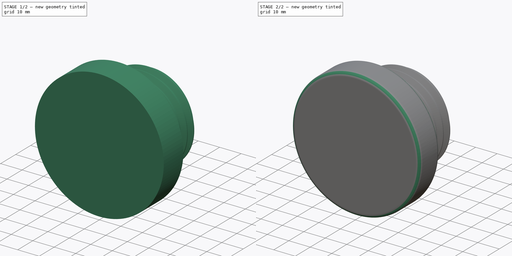
[diagram: build sequence overview — one tinted view per stage of 2, left to right]
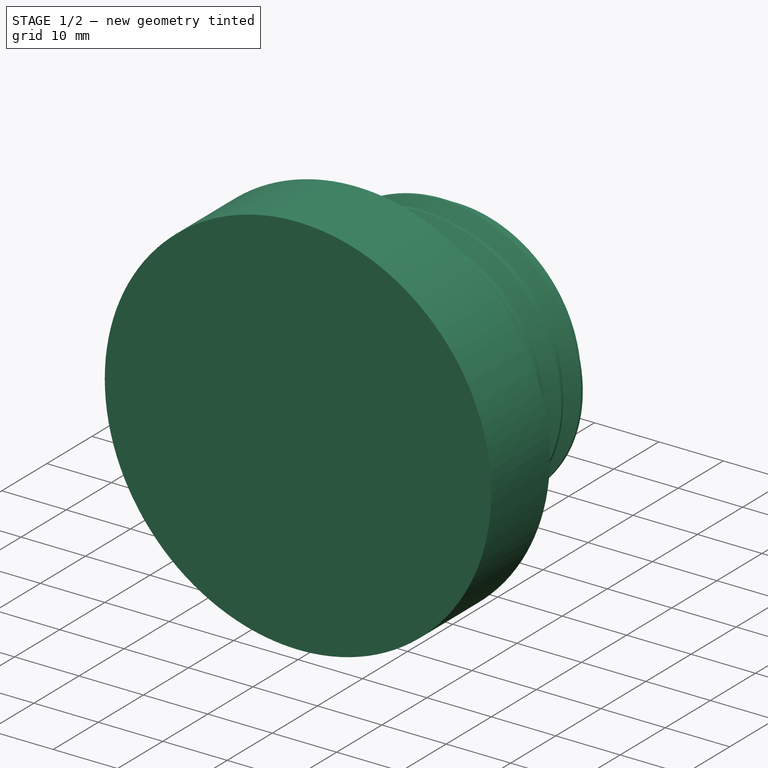
[diagram: stage 1 of 2 — iso view after this stage's code; geometry added in this stage tinted green]
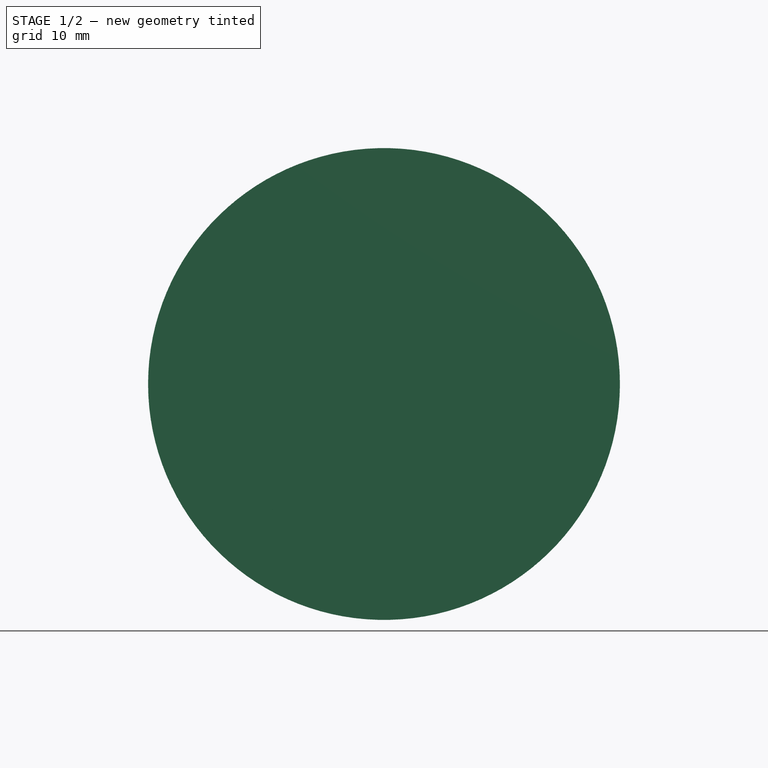
[diagram: stage 1 of 2 — front view after this stage's code; geometry added in this stage tinted green]
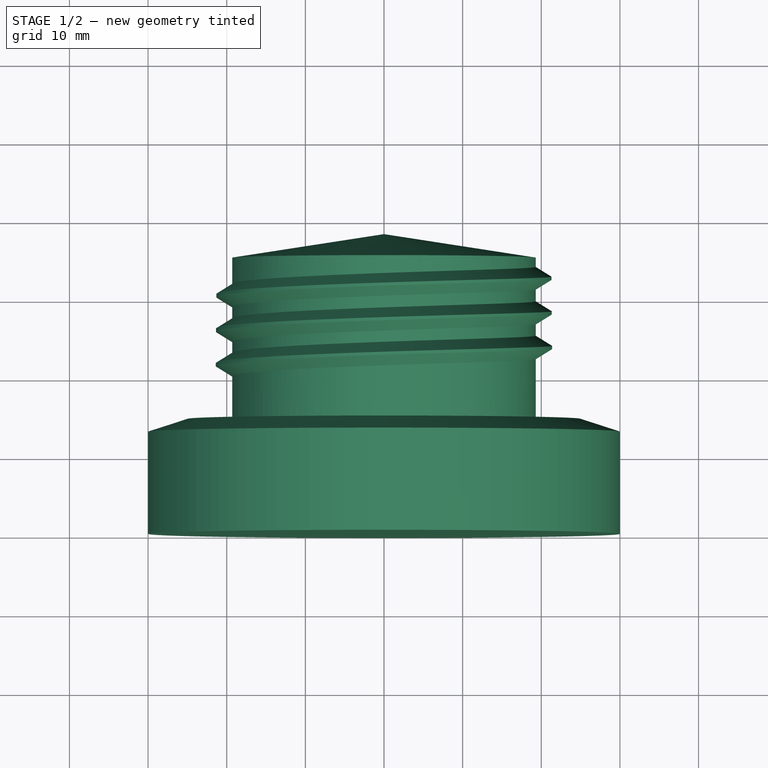
[diagram: stage 1 of 2 — top view after this stage's code; geometry added in this stage tinted green]
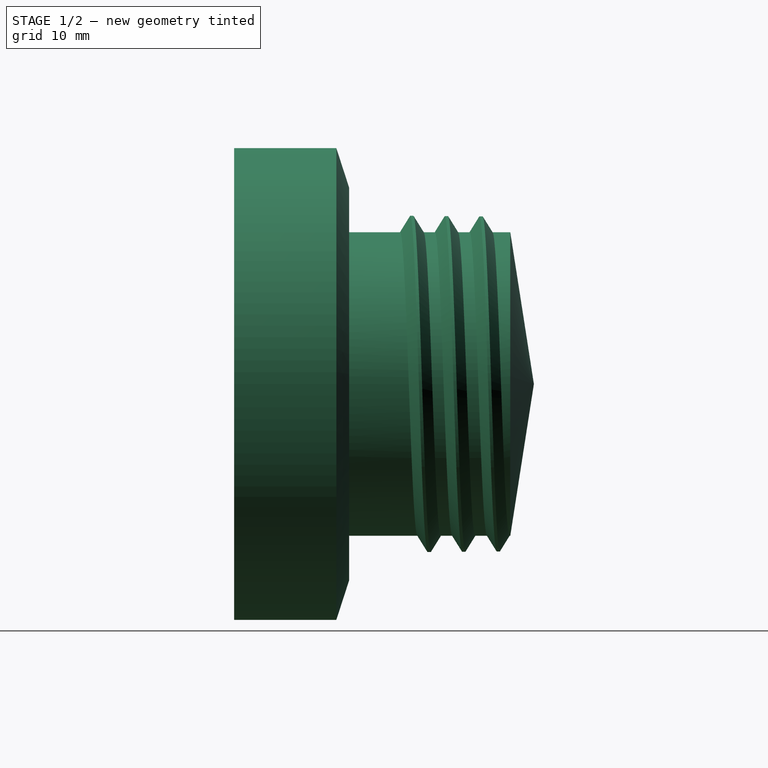
[diagram: stage 1 of 2 — right view after this stage's code; geometry added in this stage tinted green]
FCSTD DOCUMENT  (FreeCAD 0.19R)
Label: zatka_1
License: All rights reserved
LicenseURL: http://en.wikipedia.org/wiki/All_rights_reserved
objects: Sketcher::SketchObject×2, PartDesign::Revolution×1, PartDesign::AdditiveHelix×1, PartDesign::Fillet×1, PartDesign::Body×1
note: 9 computed .brp shape members not serialized (recipe doc carries the construction recipe); baked Part::Feature solids carry a one-line shape summary decoded from their .brp

FEATURE [Sketcher::SketchObject] Sketch
  FullyConstrained = false
  MapMode = 5
  Support = -> [XY_Plane]
  sketch-geometry (7):
    g0: LineSegment StartX=0 StartY=38.1206 StartZ=0 EndX=-19.3 EndY=35.1206 EndZ=0
    g1: LineSegment StartX=-19.3 StartY=35.1206 StartZ=0 EndX=-19.3 EndY=14.6206 EndZ=0
    g2: LineSegment StartX=-30 StartY=13 StartZ=0 EndX=-30 EndY=0 EndZ=0
    g3: LineSegment StartX=-30 StartY=0 StartZ=0 EndX=0 EndY=0 EndZ=0
    g4: LineSegment StartX=0 StartY=0 StartZ=0 EndX=0 EndY=38.1206 EndZ=0
    g5: LineSegment StartX=-19.3 StartY=14.6206 StartZ=0 EndX=-25 EndY=14.6206 EndZ=0
    g6: LineSegment StartX=-25 StartY=14.6206 StartZ=0 EndX=-30 EndY=13 EndZ=0
  constraints (19):
    c: PointOnObject(g0,g-2)
    c: Coincident(g1,g0)
    c: Vertical(g1)
    c: PointOnObject(g2,g-1)
    c: Vertical(g2)
    c: Coincident(g3,g2)
    c: Coincident(g3,g-1)
    c: Coincident(g4,g3)
    c: Coincident(g4,g0)
    c: DistanceX(g1,g3) = 19.3
    c: DistanceY(g1,g0) = 20.5
    c: DistanceY(g2,g2) = 13
    c: DistanceY(g0,g0) = -3
    c: DistanceX(g2,g3) = 30
    c: Coincident(g5,g1)
    c: Coincident(g6,g5)
    c: Coincident(g6,g2)
    c: Parallel(g5,g3)
    c: DistanceX(g5,g3) = 25
FEATURE [PartDesign::Revolution] Revolution
  Angle = 360
  Axis = (0,1,0)
  Base = (0,0,0)
  Profile = -> Sketch
  ReferenceAxis = -> Sketch [V_Axis]
FEATURE [Sketcher::SketchObject] Sketch001
  FullyConstrained = false
  MapMode = 5
  Support = -> [XY_Plane]
  sketch-geometry (4):
    g0: LineSegment StartX=-19.3 StartY=23 StartZ=0 EndX=-21.4 EndY=21.7 EndZ=0
    g1: LineSegment StartX=-19.3 StartY=20 StartZ=0 EndX=-19.3 EndY=23 EndZ=0
    g2: LineSegment StartX=-21.4 StartY=21.7 StartZ=0 EndX=-21.4 EndY=21.3 EndZ=0
    g3: LineSegment StartX=-21.4 StartY=21.3 StartZ=0 EndX=-19.3 EndY=20 EndZ=0
  constraints (11):
    c: Coincident(g1,g0)
    c: DistanceX(g1,g-1) = 19.3
    c: DistanceX(g0,g1) = 0
    c: DistanceY(g-1,g1) = 20
    c: DistanceX(g0,g0) = 2.1
    c: DistanceY(g1,g0) = 3
    c: DistanceY(g0,g0) = 1.3
    c: Coincident(g2,g0)
    c: Vertical(g2)
    c: Coincident(g3,g2)
    c: DistanceY(g2,g0) = 0.4
FEATURE [PartDesign::AdditiveHelix] AdditiveHelix
  Angle = -0.5
  Axis = (1e-16,1,-1e-16)
  Base = (0,0,0)
  BaseFeature = -> Revolution
  HasBeenEdited = true
  Height = 12.1
  LeftHanded = false
  Mode = 1
  Outside = false
  Pitch = 4.4
  Profile = -> Sketch001
  ReferenceAxis = -> Y_Axis
  Turns = 2.75
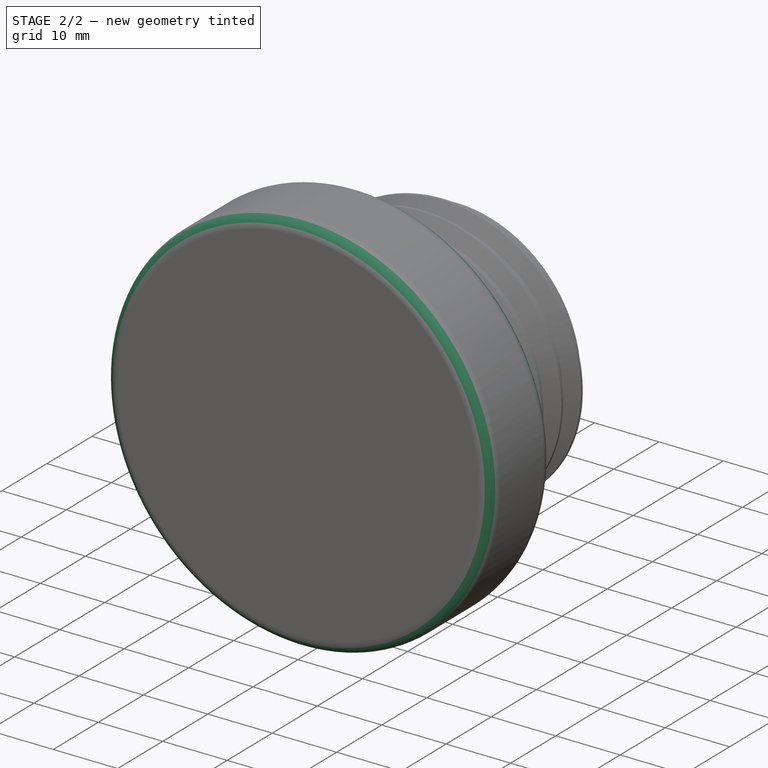
[diagram: stage 2 of 2 — iso view after this stage's code; geometry added in this stage tinted green]
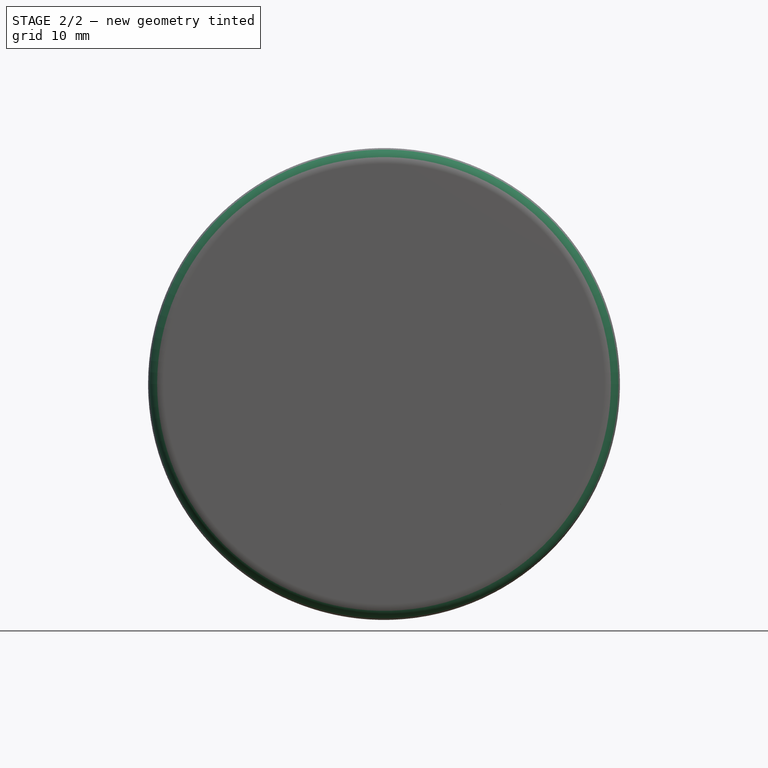
[diagram: stage 2 of 2 — front view after this stage's code; geometry added in this stage tinted green]
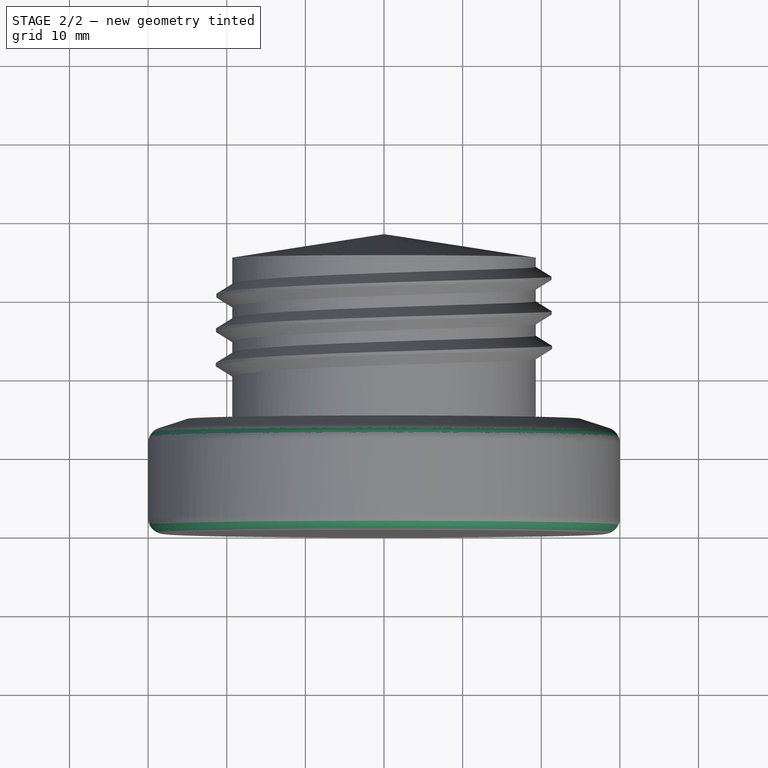
[diagram: stage 2 of 2 — top view after this stage's code; geometry added in this stage tinted green]
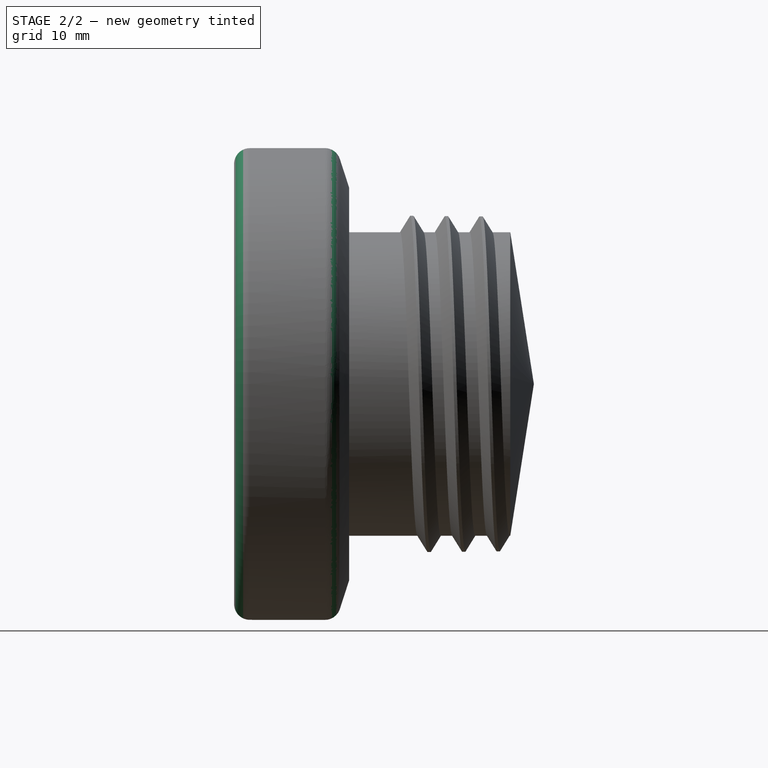
[diagram: stage 2 of 2 — right view after this stage's code; geometry added in this stage tinted green]
FEATURE [PartDesign::Fillet] Fillet
  Base = -> AdditiveHelix [Edge41,Edge43]
  BaseFeature = -> AdditiveHelix
  Radius = 2
  SupportTransform = false
FEATURE [PartDesign::Body] Body
  Group = -> [Sketch,Revolution,Sketch001,AdditiveHelix,Fillet]
  Origin = -> Origin
  Tip = -> Fillet
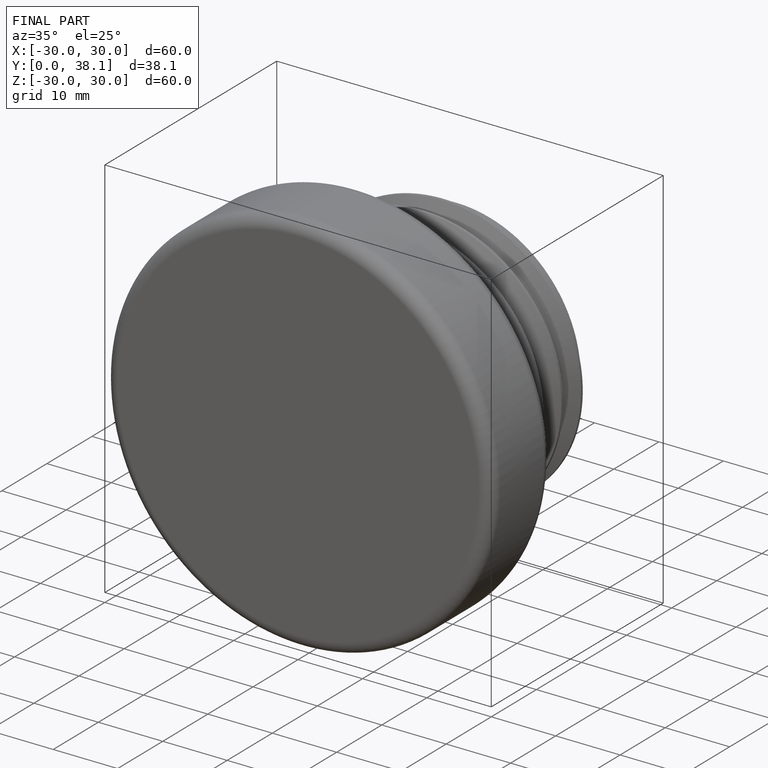
[diagram: finished part — iso view with bounding-box wireframe]
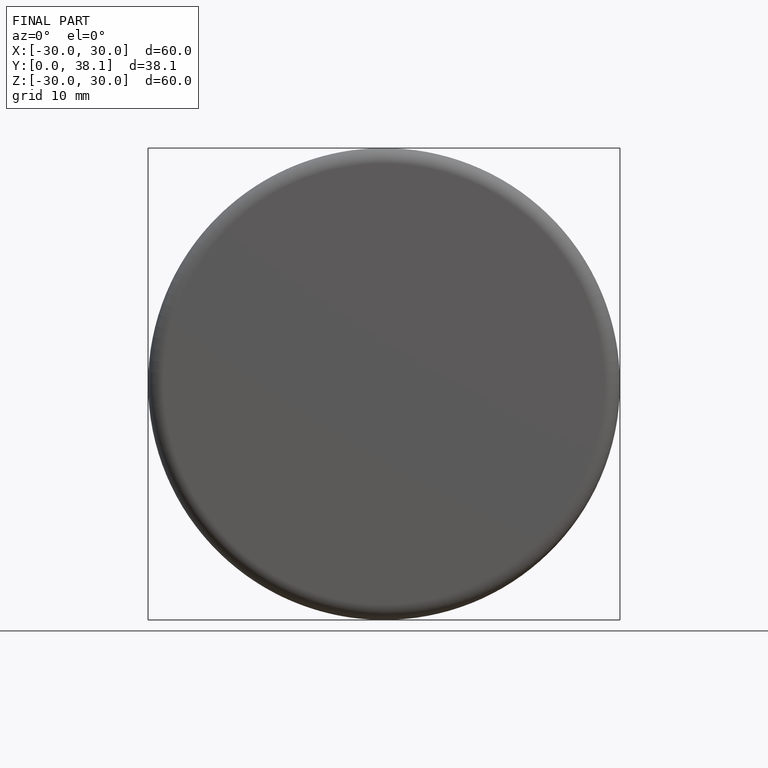
[diagram: finished part — front view with bounding-box wireframe]
